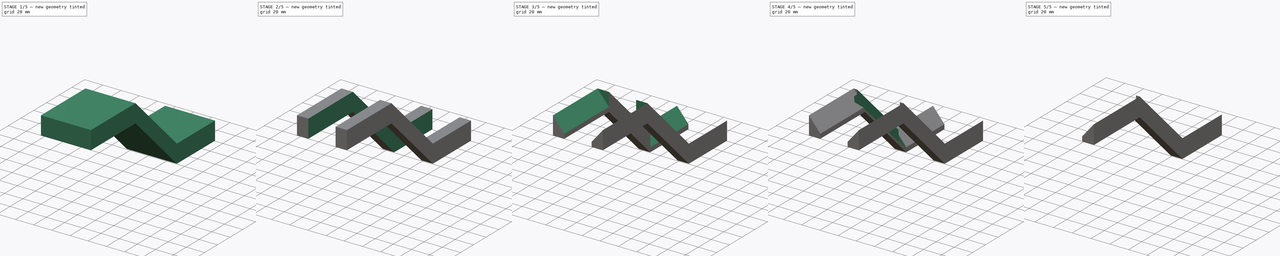
[diagram: build sequence overview — one tinted view per stage of 5, left to right]
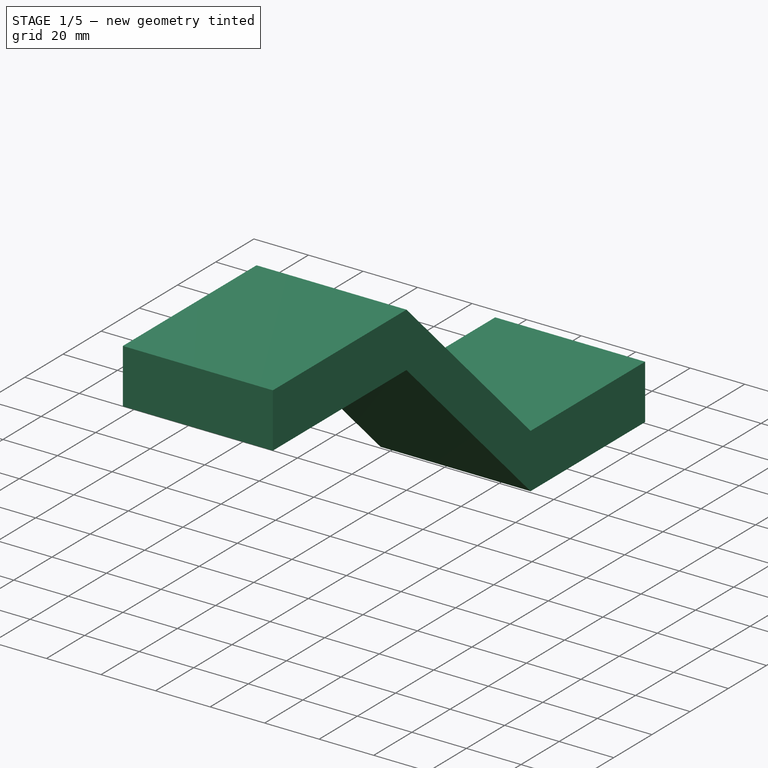
[diagram: stage 1 of 5 — iso view after this stage's code; geometry added in this stage tinted green]
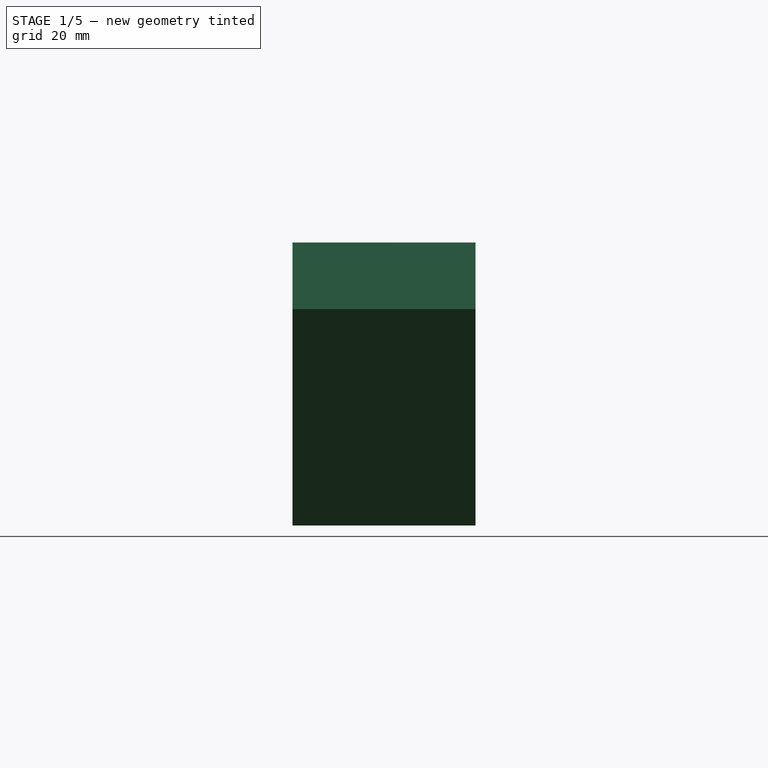
[diagram: stage 1 of 5 — front view after this stage's code; geometry added in this stage tinted green]
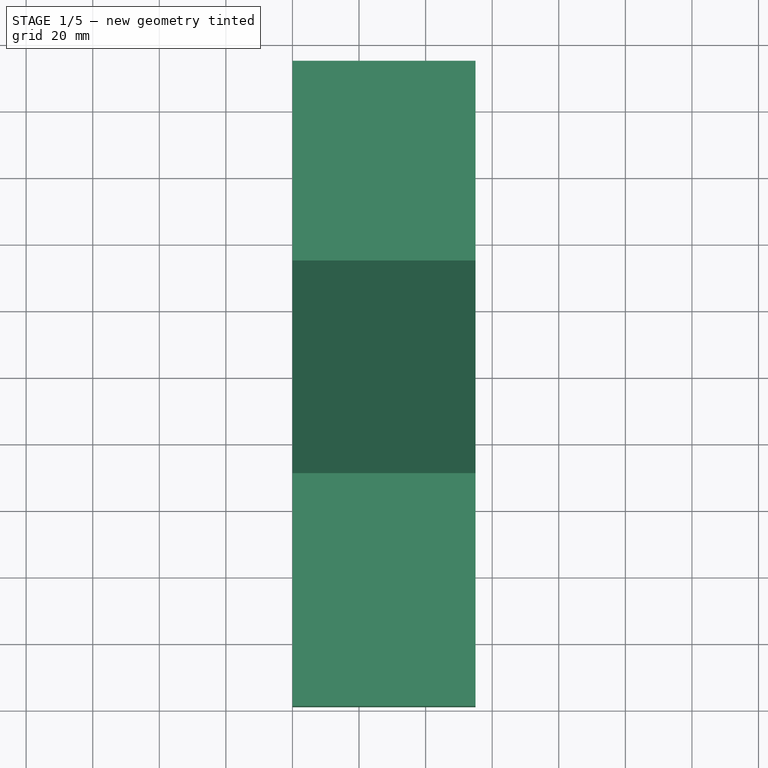
[diagram: stage 1 of 5 — top view after this stage's code; geometry added in this stage tinted green]
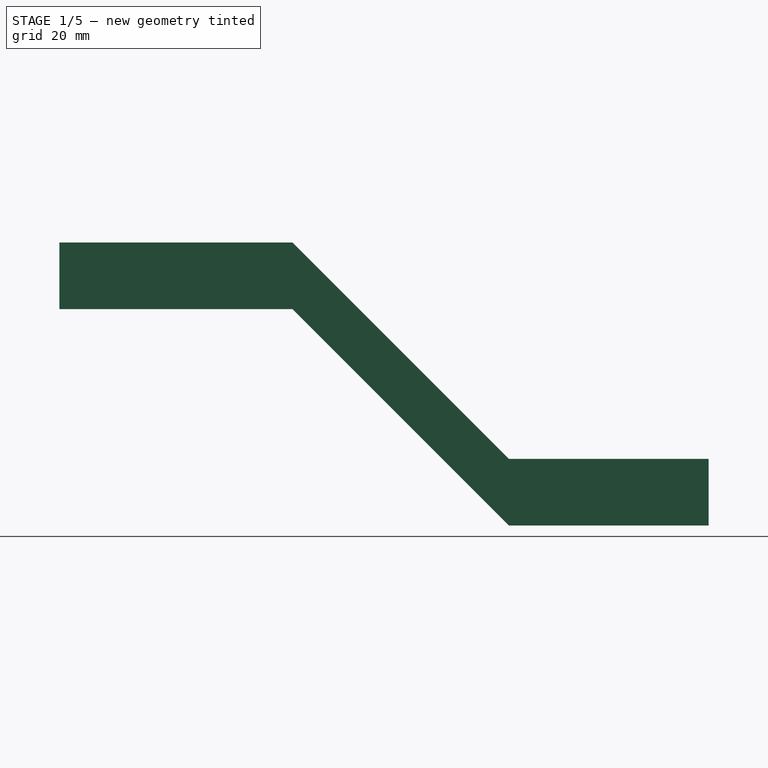
[diagram: stage 1 of 5 — right view after this stage's code; geometry added in this stage tinted green]
FCSTD DOCUMENT  (FreeCAD 0.18R4 (GitTag))
Label: Bras robot droit
License: All rights reserved
LicenseURL: http://en.wikipedia.org/wiki/All_rights_reserved
objects: Sketcher::SketchObject×18, PartDesign::Pocket×16, PartDesign::Hole×3, PartDesign::Pad×1, PartDesign::Body×1
note: 59 computed .brp shape members not serialized (recipe doc carries the construction recipe); baked Part::Feature solids carry a one-line shape summary decoded from their .brp

FEATURE [Sketcher::SketchObject] Sketch  label="Base du bras"
  MapMode = 5
  Placement = pos=(0,0,0) rot=(0.57735,0.57735,0.57735;2.0944rad)
  Support = -> [YZ_Plane]
  sketch-geometry (8):
    g0: LineSegment StartX=0 StartY=20 StartZ=0 EndX=70 EndY=20 EndZ=0
    g1: LineSegment StartX=70 StartY=0 StartZ=0 EndX=0 EndY=0 EndZ=0
    g2: LineSegment StartX=0 StartY=0 StartZ=0 EndX=0 EndY=20 EndZ=0
    g3: LineSegment StartX=70 StartY=20 StartZ=0 EndX=135 EndY=-45 EndZ=0
    g4: LineSegment StartX=70 StartY=0 StartZ=0 EndX=135 EndY=-65 EndZ=0
    g5: LineSegment StartX=135 StartY=-45 StartZ=0 EndX=195 EndY=-45 EndZ=0
    g6: LineSegment StartX=195 StartY=-45 StartZ=0 EndX=195 EndY=-65 EndZ=0
    g7: LineSegment StartX=195 StartY=-65 StartZ=0 EndX=135 EndY=-65 EndZ=0
  constraints (24):
    c: Coincident(g1,g2)
    c: Coincident(g2,g0)
    c: Horizontal(g0)
    c: Horizontal(g1)
    c: Vertical(g2)
    c: DistanceX(g0,g0) = 70
    c: DistanceY(g1,g0) = 20
    c: Parallel(g3,g4)
    c: DistanceX(g3,g3) = 65
    c: DistanceY(g3,g3) = 65
    c: DistanceY(g4,g4) = 65
    c: Coincident(g0,g3)
    c: Coincident(g5,g6)
    c: Coincident(g6,g7)
    c: Horizontal(g5)
    c: Horizontal(g7)
    c: Vertical(g6)
    c: DistanceY(g7,g5) = 20
    c: DistanceX(g5,g5) = 60
    c: Coincident(g3,g5)
    c: Coincident(g1,g-1)
    c: Coincident(g1,g4)
    c: DistanceX(g1,g1) = 70
    c: DistanceX(g7,g7) = 60
FEATURE [PartDesign::Pad] Pad  label="Base du bras001"
  Length = 55
  Length2 = 100
  Placement = pos=(0,0,0) rot=(0.57735,0.57735,0.57735;2.0944rad)
  Profile = -> Sketch
  Type = 0
FEATURE [Sketcher::SketchObject] Sketch001
  MapMode = 5
  Support = -> [XY_Plane]
  sketch-geometry (4):
    g0: LineSegment StartX=101.326 StartY=70.9871 StartZ=0 EndX=131.326 EndY=70.9871 EndZ=0
    g1: LineSegment StartX=131.326 StartY=70.9871 StartZ=0 EndX=131.326 EndY=0 EndZ=0
    g2: LineSegment StartX=131.326 StartY=0 StartZ=0 EndX=101.326 EndY=0 EndZ=0
    g3: LineSegment StartX=101.326 StartY=0 StartZ=0 EndX=101.326 EndY=70.9871 EndZ=0
  constraints (10):
    c: Coincident(g0,g1)
    c: Coincident(g1,g2)
    c: Coincident(g2,g3)
    c: Coincident(g3,g0)
    c: Horizontal(g0)
    c: Horizontal(g2)
    c: Vertical(g1)
    c: Vertical(g3)
    c: DistanceX(g2,g2) = 30
    c: PointOnObject(g2,g-1)
FEATURE [Sketcher::SketchObject] Sketch002
  MapMode = 5
  Placement = pos=(-5.6e-15,8.8e-15,20) rot=(0,0,-1;1.5708rad)
  Support = -> [Pad]
  sketch-geometry (4):
    g0: LineSegment StartX=-70 StartY=42.5 StartZ=0 EndX=0 EndY=42.5 EndZ=0
    g1: LineSegment StartX=0 StartY=42.5 StartZ=0 EndX=0 EndY=12.5 EndZ=0
    g2: LineSegment StartX=0 StartY=12.5 StartZ=0 EndX=-70 EndY=12.5 EndZ=0
    g3: LineSegment StartX=-70 StartY=12.5 StartZ=0 EndX=-70 EndY=42.5 EndZ=0
  constraints (12):
    c: Coincident(g0,g1)
    c: Coincident(g1,g2)
    c: Coincident(g2,g3)
    c: Coincident(g3,g0)
    c: Horizontal(g0)
    c: Horizontal(g2)
    c: Vertical(g1)
    c: Vertical(g3)
    c: DistanceY(g-1,g1) = 12.5
    c: DistanceX(g-1,g1) = 0
    c: DistanceX(g0,g0) = 70
    c: DistanceY(g1,g1) = 30
FEATURE [PartDesign::Hole] Hole
  BaseFeature = -> Pad
  Depth = 25
  DepthType = 1
  Diameter = 1.75
  DrillPoint = 1
  DrillPointAngle = 118
  HoleCutCountersinkAngle = 90
  HoleCutDepth = 0
  HoleCutDiameter = 1.6
  HoleCutType = 0
  ModelActualThread = false
  Placement = pos=(0,0,0) rot=(0.57735,0.57735,0.57735;2.0944rad)
  Profile = -> Pad [Face3]
  Tapered = false
  TaperedAngle = 90
  ThreadAngle = 0
  ThreadClass = 0
  ThreadCutOffInner = 0
  ThreadCutOffOuter = 0
  ThreadDirection = 0
  ThreadFit = 0
  ThreadPitch = 0
  ThreadSize = 0
  ThreadType = 1
  Threaded = false
FEATURE [PartDesign::Hole] Hole001
  BaseFeature = -> Hole
  Depth = 25
  DepthType = 1
  Diameter = 1.75
  DrillPoint = 1
  DrillPointAngle = 118
  HoleCutCountersinkAngle = 90
  HoleCutDepth = 0
  HoleCutDiameter = 1.6
  HoleCutType = 0
  ModelActualThread = false
  Placement = pos=(0,0,0) rot=(0.57735,0.57735,0.57735;2.0944rad)
  Profile = -> Hole [Face3]
  Tapered = false
  TaperedAngle = 90
  ThreadAngle = 0
  ThreadClass = 0
  ThreadCutOffInner = 0
  ThreadCutOffOuter = 0
  ThreadDirection = 0
  ThreadFit = 0
  ThreadPitch = 0
  ThreadSize = 0
  ThreadType = 1
  Threaded = false
FEATURE [PartDesign::Hole] Hole002
  BaseFeature = -> Hole001
  Depth = 25
  DepthType = 1
  Diameter = 6
  DrillPoint = 1
  DrillPointAngle = 118
  HoleCutCountersinkAngle = 90
  HoleCutDepth = 0
  HoleCutDiameter = 0
  HoleCutType = 0
  ModelActualThread = false
  Placement = pos=(0,0,0) rot=(0.57735,0.57735,0.57735;2.0944rad)
  Profile = -> Hole001 [Face3]
  Tapered = false
  TaperedAngle = 90
  ThreadAngle = 0
  ThreadClass = 0
  ThreadCutOffInner = 0
  ThreadCutOffOuter = 0
  ThreadDirection = 0
  ThreadFit = 0
  ThreadPitch = 0
  ThreadSize = 0
  ThreadType = 0
  Threaded = false
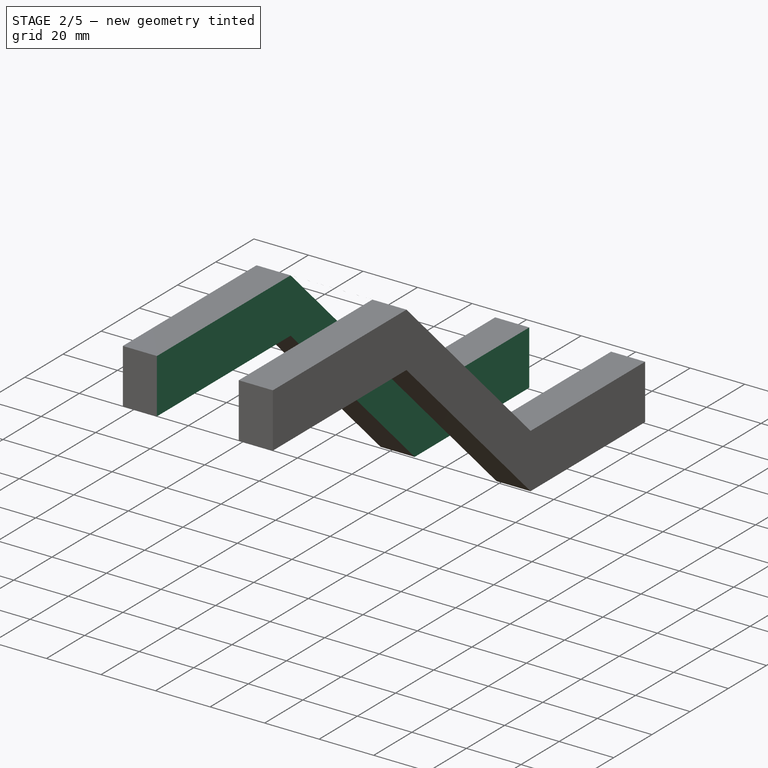
[diagram: stage 2 of 5 — iso view after this stage's code; geometry added in this stage tinted green]
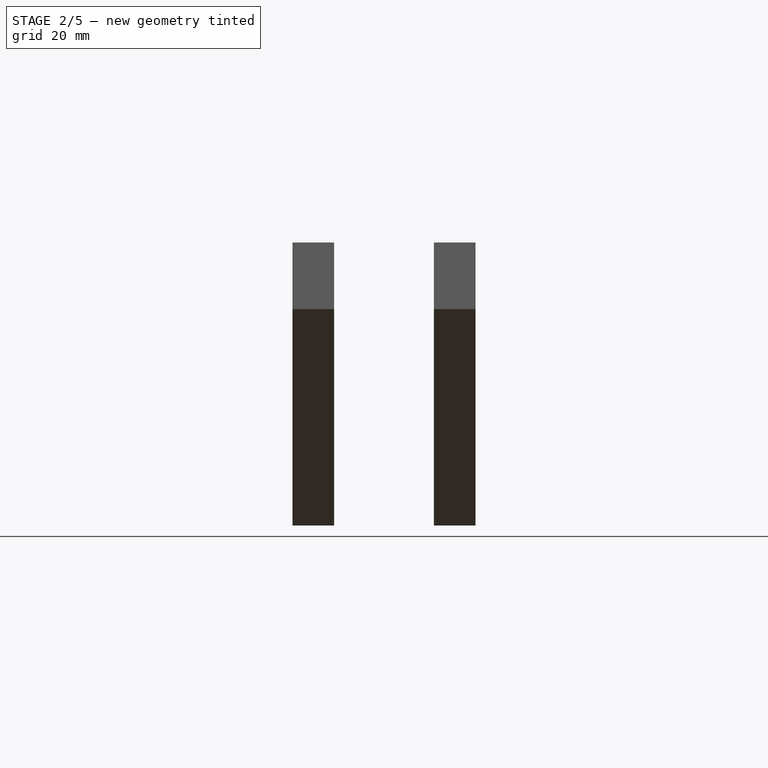
[diagram: stage 2 of 5 — front view after this stage's code; geometry added in this stage tinted green]
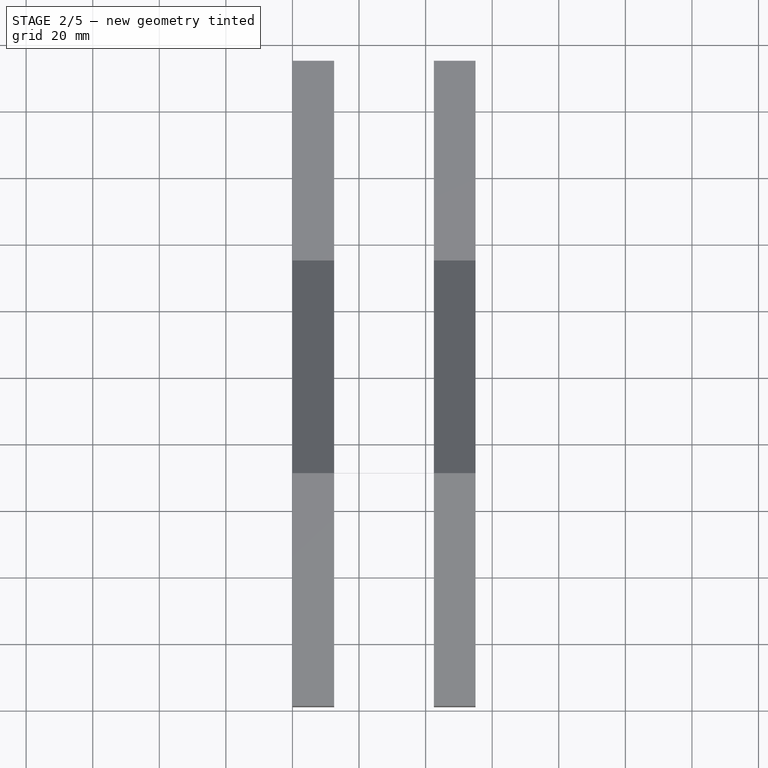
[diagram: stage 2 of 5 — top view after this stage's code; geometry added in this stage tinted green]
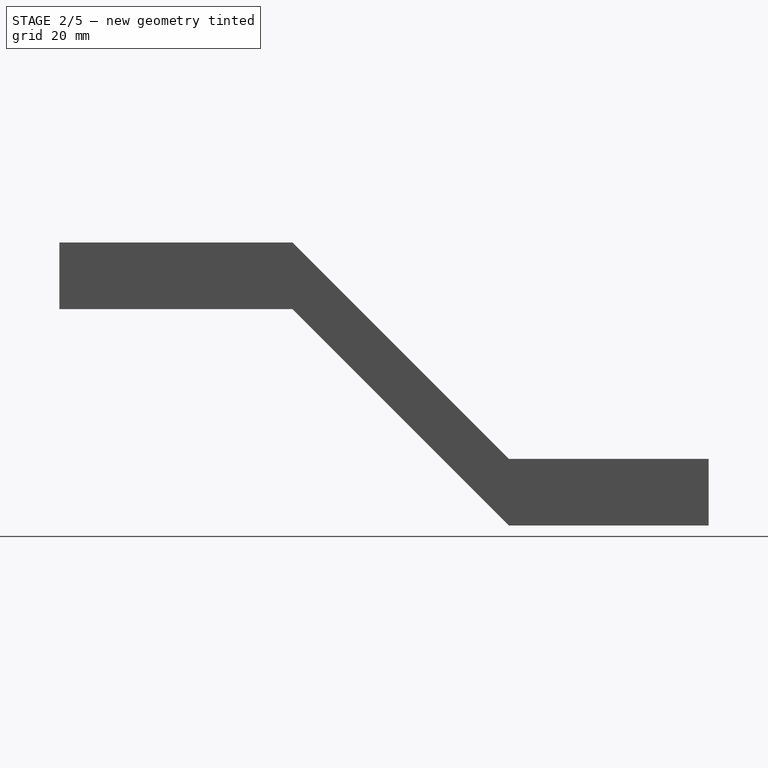
[diagram: stage 2 of 5 — right view after this stage's code; geometry added in this stage tinted green]
FEATURE [PartDesign::Pocket] Pocket
  BaseFeature = -> Hole002
  Length = 5
  Length2 = 100
  Placement = pos=(0,0,0) rot=(0.57735,0.57735,0.57735;2.0944rad)
  Profile = -> Sketch002
  Type = 1
FEATURE [Sketcher::SketchObject] Sketch003
  MapMode = 5
  Placement = pos=(7.6e-15,45,45) rot=(-0.357407,-0.357407,-0.862856;1.71777rad)
  Support = -> [Pocket]
  sketch-geometry (4):
    g0: LineSegment StartX=-127.283 StartY=42.5 StartZ=0 EndX=-35.36 EndY=42.5 EndZ=0
    g1: LineSegment StartX=-35.36 StartY=42.5 StartZ=0 EndX=-35.36 EndY=12.5 EndZ=0
    g2: LineSegment StartX=-35.36 StartY=12.5 StartZ=0 EndX=-127.283 EndY=12.5 EndZ=0
    g3: LineSegment StartX=-127.283 StartY=12.5 StartZ=0 EndX=-127.283 EndY=42.5 EndZ=0
  constraints (12):
    c: Coincident(g0,g1)
    c: Coincident(g1,g2)
    c: Coincident(g2,g3)
    c: Coincident(g3,g0)
    c: Horizontal(g0)
    c: Horizontal(g2)
    c: Vertical(g1)
    c: Vertical(g3)
    c: DistanceY(g1,g1) = 30
    c: DistanceX(g0,g0) = 91.923
    c: DistanceY(g-1,g1) = 12.5
    c: DistanceX(g1,g-1) = 35.36
FEATURE [PartDesign::Pocket] Pocket001
  BaseFeature = -> Pocket
  Length = 5
  Length2 = 100
  Placement = pos=(0,0,0) rot=(0.57735,0.57735,0.57735;2.0944rad)
  Profile = -> Sketch003
  Type = 1
FEATURE [Sketcher::SketchObject] Sketch004
  MapMode = 5
  Placement = pos=(1.26e-14,-1.98e-14,-45) rot=(0,0,-1;1.5708rad)
  Support = -> [Pocket001]
  sketch-geometry (4):
    g0: LineSegment StartX=-195 StartY=42.5 StartZ=0 EndX=-135 EndY=42.5 EndZ=0
    g1: LineSegment StartX=-135 StartY=42.5 StartZ=0 EndX=-135 EndY=12.5 EndZ=0
    g2: LineSegment StartX=-135 StartY=12.5 StartZ=0 EndX=-195 EndY=12.5 EndZ=0
    g3: LineSegment StartX=-195 StartY=12.5 StartZ=0 EndX=-195 EndY=42.5 EndZ=0
  constraints (12):
    c: Coincident(g0,g1)
    c: Coincident(g1,g2)
    c: Coincident(g2,g3)
    c: Coincident(g3,g0)
    c: Horizontal(g0)
    c: Horizontal(g2)
    c: Vertical(g1)
    c: Vertical(g3)
    c: DistanceY(g1,g1) = 30
    c: DistanceX(g2,g2) = 60
    c: DistanceX(g1,g-1) = 135
    c: DistanceY(g-1,g1) = 12.5
FEATURE [PartDesign::Pocket] Pocket002
  BaseFeature = -> Pocket001
  Length = 5
  Length2 = 100
  Placement = pos=(0,0,0) rot=(0.57735,0.57735,0.57735;2.0944rad)
  Profile = -> Sketch004
  Type = 1
FEATURE [PartDesign::Pocket] Pocket003
  BaseFeature = -> Pocket002
  Length = 5
  Length2 = 100
  Placement = pos=(0,0,0) rot=(0.57735,0.57735,0.57735;2.0944rad)
  Profile = -> Pocket002 [Face19]
  Type = 1
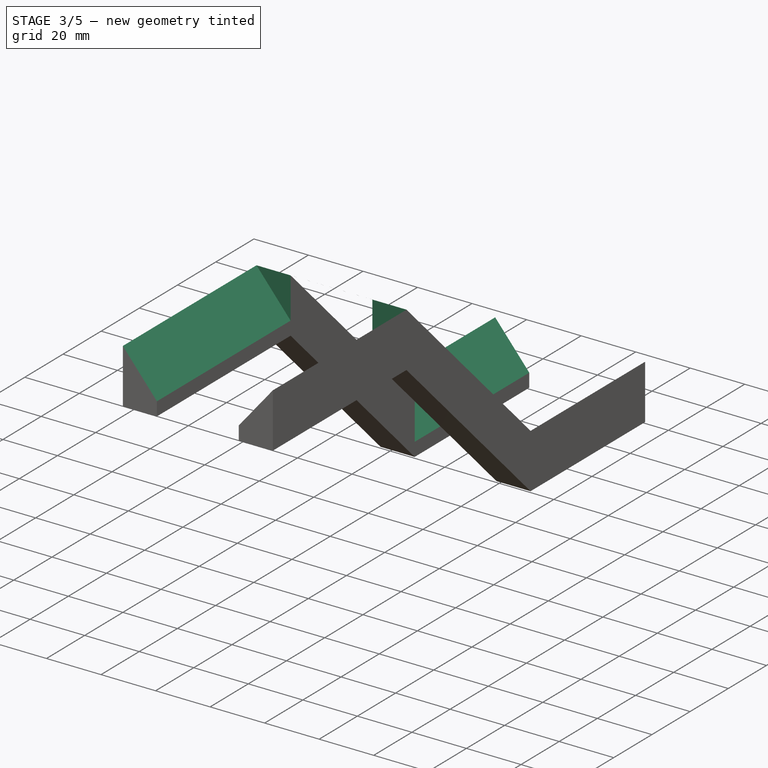
[diagram: stage 3 of 5 — iso view after this stage's code; geometry added in this stage tinted green]
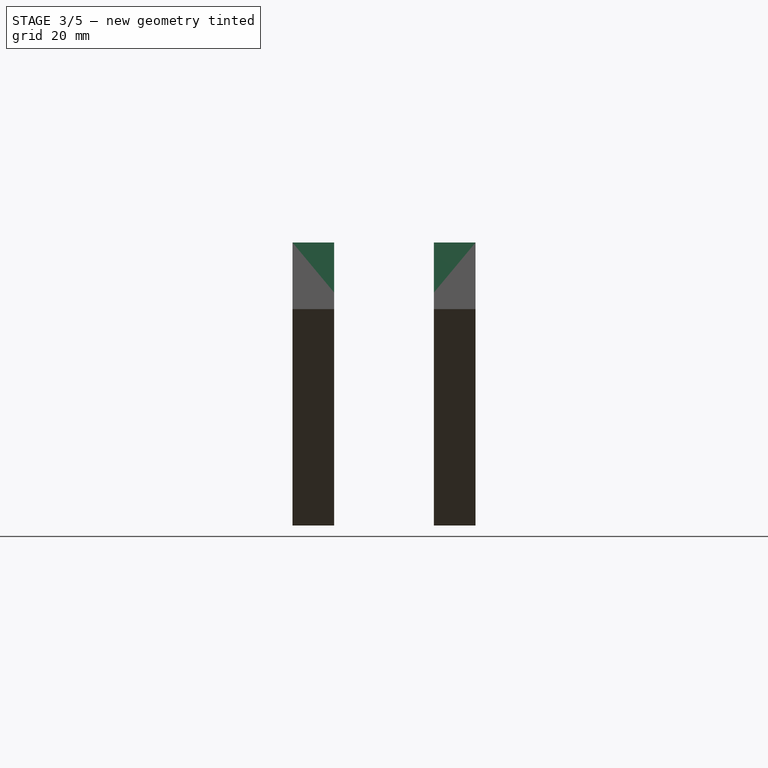
[diagram: stage 3 of 5 — front view after this stage's code; geometry added in this stage tinted green]
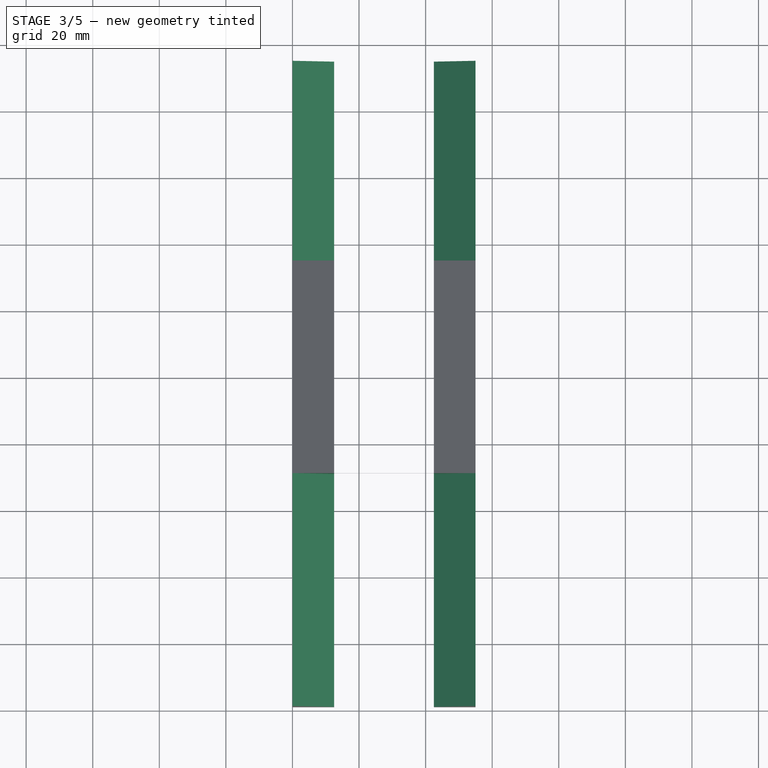
[diagram: stage 3 of 5 — top view after this stage's code; geometry added in this stage tinted green]
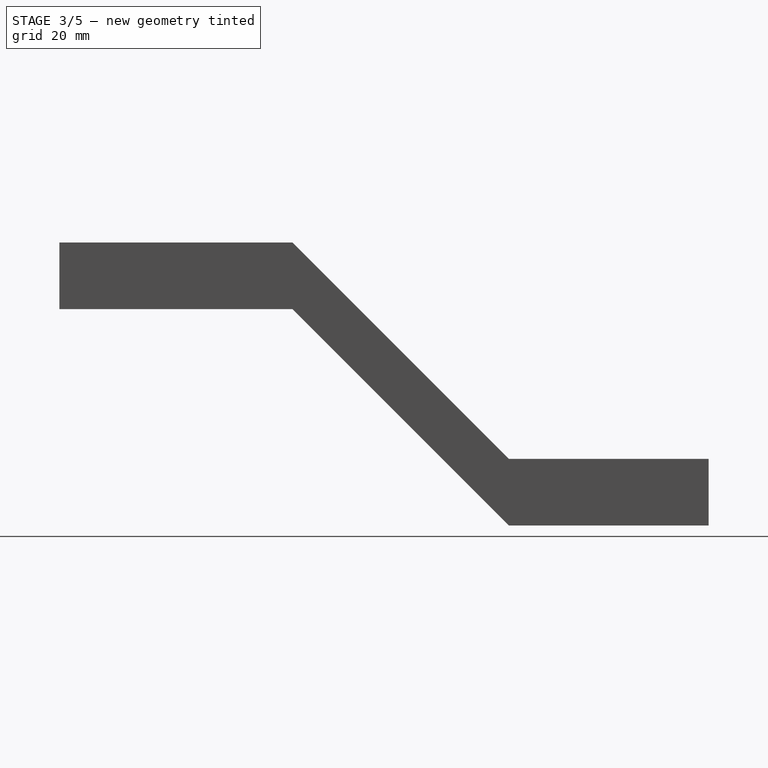
[diagram: stage 3 of 5 — right view after this stage's code; geometry added in this stage tinted green]
FEATURE [Sketcher::SketchObject] Sketch005
  MapMode = 5
  Placement = pos=(8.58e-14,195,-4.29e-14) rot=(0.57735,0.57735,0.57735;4.18879rad)
  Support = -> [Pocket003]
  sketch-geometry (3):
    g0: LineSegment StartX=-60 StartY=12.5 StartZ=0 EndX=-45 EndY=0 EndZ=0
    g1: LineSegment StartX=-60 StartY=12.5 StartZ=0 EndX=-45 EndY=12.5 EndZ=0
    g2: LineSegment StartX=-45 StartY=12.5 StartZ=0 EndX=-45 EndY=0 EndZ=0
  constraints (9):
    c: DistanceY(g-1,g0) = 0
    c: DistanceX(g0,g-1) = 45
    c: Vertical(g2)
    c: DistanceY(g2,g2) = 12.5
    c: Coincident(g2,g0)
    c: Coincident(g1,g2)
    c: Coincident(g0,g1)
    c: Horizontal(g1)
    c: DistanceX(g1,g1) = 15
FEATURE [PartDesign::Pocket] Pocket004
  BaseFeature = -> Pocket003
  Length = 60
  Length2 = 100
  Placement = pos=(0,0,0) rot=(0.57735,0.57735,0.57735;2.0944rad)
  Profile = -> Sketch005
  Type = 0
FEATURE [Sketcher::SketchObject] Sketch006
  MapMode = 5
  Placement = pos=(8.58e-14,195,-4.29e-14) rot=(0.57735,0.57735,0.57735;4.18879rad)
  Support = -> [Pocket004]
  sketch-geometry (3):
    g0: LineSegment StartX=-45 StartY=55 StartZ=0 EndX=-45 EndY=42.5 EndZ=0
    g1: LineSegment StartX=-45 StartY=42.5 StartZ=0 EndX=-60 EndY=42.5 EndZ=0
    g2: LineSegment StartX=-45 StartY=55 StartZ=0 EndX=-60 EndY=42.5 EndZ=0
  constraints (9):
    c: Coincident(g0,g2)
    c: Coincident(g2,g1)
    c: Coincident(g0,g1)
    c: Vertical(g0)
    c: DistanceY(g0,g0) = 12.5
    c: DistanceY(g-1,g0) = 42.5
    c: DistanceX(g0,g-1) = 45
    c: Horizontal(g1)
    c: DistanceX(g1,g1) = 15
FEATURE [PartDesign::Pocket] Pocket005
  BaseFeature = -> Pocket004
  Length = 60
  Length2 = 100
  Placement = pos=(0,0,0) rot=(0.57735,0.57735,0.57735;2.0944rad)
  Profile = -> Sketch006
  Type = 0
FEATURE [Sketcher::SketchObject] Sketch009
  MapMode = 5
  Placement = pos=(0,0,0) rot=(-0.57735,-0.57735,0.57735;4.18879rad)
  Support = -> [Pocket005]
FEATURE [Sketcher::SketchObject] Sketch011
  MapMode = 5
  Placement = pos=(0,0,0) rot=(-0.57735,-0.57735,0.57735;4.18879rad)
  Support = -> [Pocket005]
  sketch-geometry (3):
    g0: LineSegment StartX=-20 StartY=12.5 StartZ=0 EndX=-20 EndY=0 EndZ=0
    g1: LineSegment StartX=-5 StartY=12.5 StartZ=0 EndX=-20 EndY=0 EndZ=0
    g2: LineSegment StartX=-20 StartY=12.5 StartZ=0 EndX=-5 EndY=12.5 EndZ=0
  constraints (9):
    c: Coincident(g0,g2)
    c: Coincident(g2,g1)
    c: Coincident(g0,g1)
    c: Vertical(g0)
    c: DistanceY(g0,g0) = 12.5
    c: Horizontal(g2)
    c: DistanceX(g2,g2) = 15
    c: DistanceX(g0,g-1) = 20
    c: DistanceY(g-1,g0) = 12.5
FEATURE [PartDesign::Pocket] Pocket006
  BaseFeature = -> Pocket005
  Length = 70
  Length2 = 100
  Placement = pos=(0,0,0) rot=(0.57735,0.57735,0.57735;2.0944rad)
  Profile = -> Sketch011
  Type = 0
FEATURE [Sketcher::SketchObject] Sketch012
  MapMode = 5
  Placement = pos=(0,0,0) rot=(-0.57735,-0.57735,0.57735;4.18879rad)
  Support = -> [Pocket006]
  sketch-geometry (3):
    g0: LineSegment StartX=-20 StartY=55 StartZ=0 EndX=-20 EndY=42.5 EndZ=0
    g1: LineSegment StartX=-20 StartY=42.5 StartZ=0 EndX=-5 EndY=42.5 EndZ=0
    g2: LineSegment StartX=-20 StartY=55 StartZ=0 EndX=-5 EndY=42.5 EndZ=0
  constraints (9):
    c: Coincident(g0,g2)
    c: Coincident(g2,g1)
    c: Coincident(g0,g1)
    c: Vertical(g0)
    c: DistanceY(g0,g0) = 12.5
    c: DistanceX(g1,g1) = 15
    c: Horizontal(g1)
    c: DistanceY(g-1,g0) = 42.5
    c: DistanceX(g0,g-1) = 20
FEATURE [PartDesign::Pocket] Pocket007
  BaseFeature = -> Pocket006
  Length = 70
  Length2 = 100
  Placement = pos=(0,0,0) rot=(0.57735,0.57735,0.57735;2.0944rad)
  Profile = -> Sketch012
  Type = 0
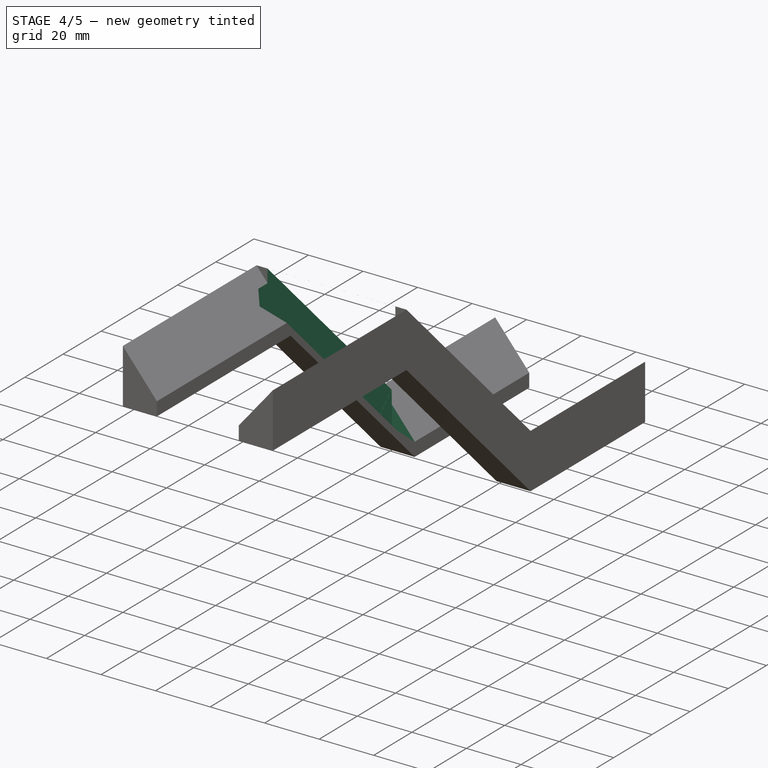
[diagram: stage 4 of 5 — iso view after this stage's code; geometry added in this stage tinted green]
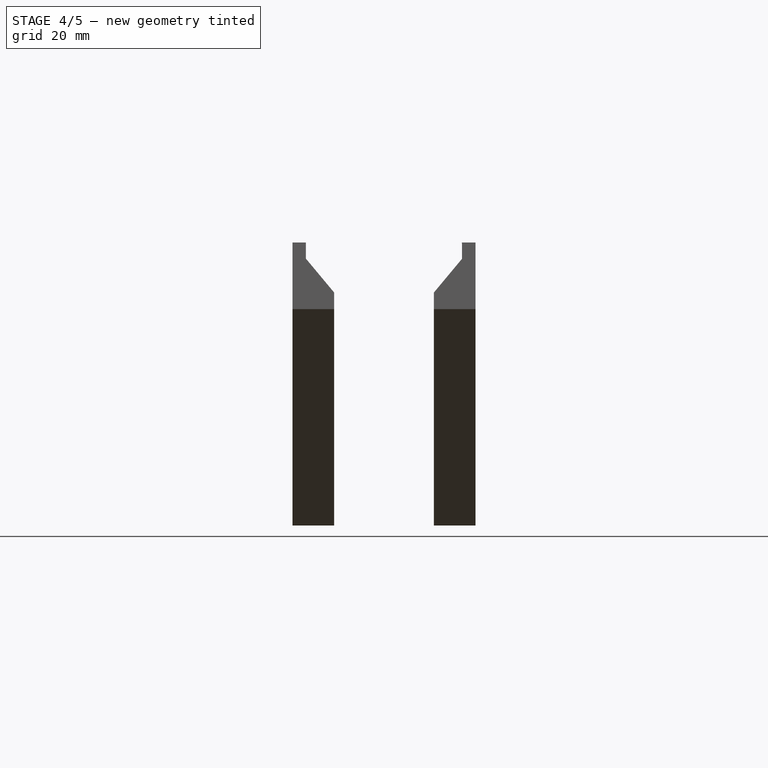
[diagram: stage 4 of 5 — front view after this stage's code; geometry added in this stage tinted green]
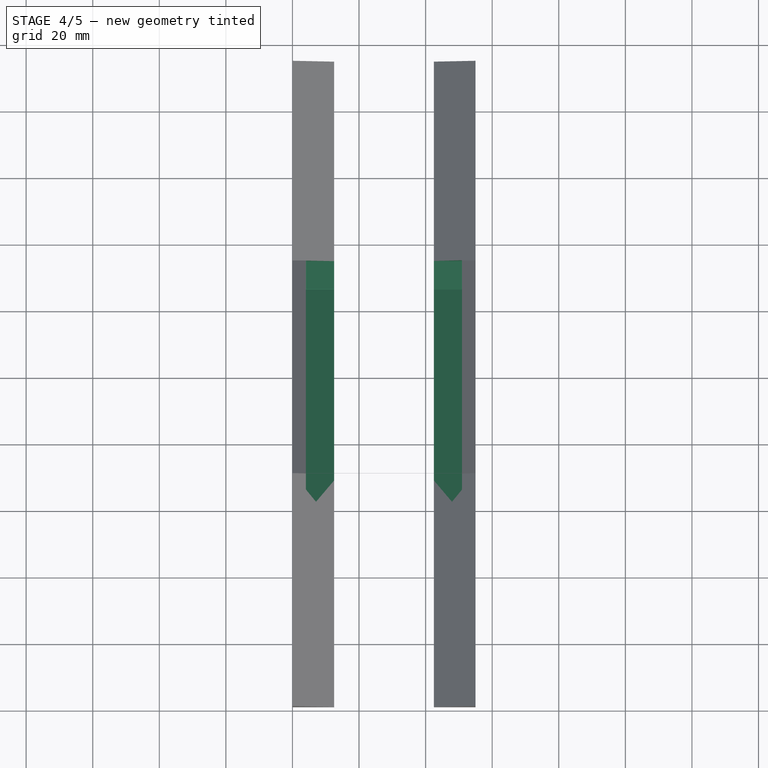
[diagram: stage 4 of 5 — top view after this stage's code; geometry added in this stage tinted green]
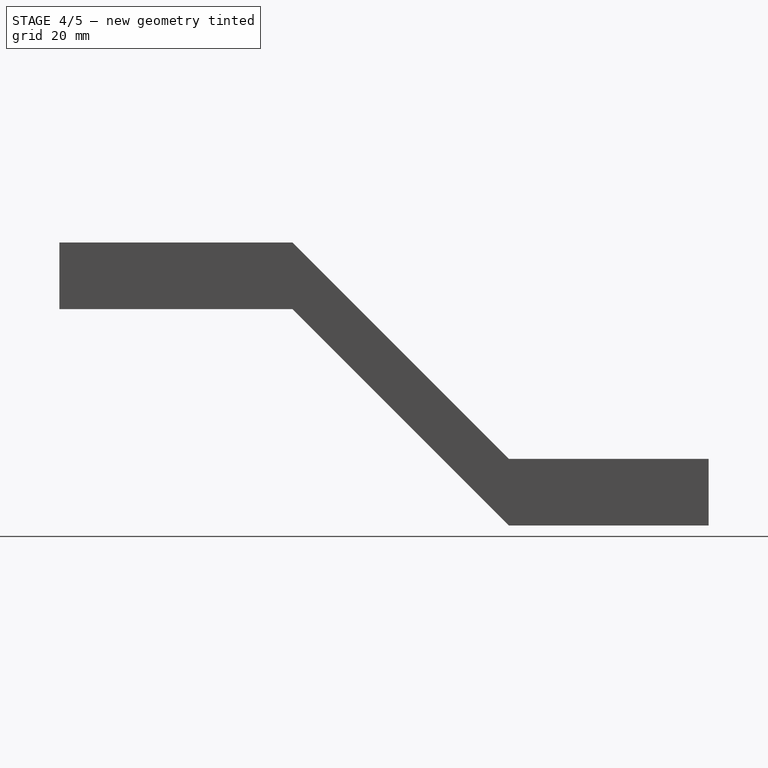
[diagram: stage 4 of 5 — right view after this stage's code; geometry added in this stage tinted green]
FEATURE [Sketcher::SketchObject] Sketch016
  MapMode = 5
  Placement = pos=(7.6e-15,45,45) rot=(-0.357407,-0.357407,-0.862856;1.71777rad)
  Support = -> [Pocket007]
  sketch-geometry (8):
    g0: LineSegment StartX=-127.25 StartY=54.8521 StartZ=0 EndX=-35.35 EndY=54.8521 EndZ=0
    g1: LineSegment StartX=-35.35 StartY=54.8521 StartZ=0 EndX=-35.35 EndY=42.3521 EndZ=0
    g2: LineSegment StartX=-35.35 StartY=42.3521 StartZ=0 EndX=-127.25 EndY=42.3521 EndZ=0
    g3: LineSegment StartX=-127.25 StartY=42.3521 StartZ=0 EndX=-127.25 EndY=54.8521 EndZ=0
    g4: LineSegment StartX=-127.25 StartY=12.7376 StartZ=0 EndX=-35.35 EndY=12.7376 EndZ=0
    g5: LineSegment StartX=-35.35 StartY=12.7376 StartZ=0 EndX=-35.35 EndY=0.237602 EndZ=0
    g6: LineSegment StartX=-35.35 StartY=0.237602 StartZ=0 EndX=-127.25 EndY=0.237602 EndZ=0
    g7: LineSegment StartX=-127.25 StartY=0.237602 StartZ=0 EndX=-127.25 EndY=12.7376 EndZ=0
  constraints (22):
    c: Coincident(g0,g1)
    c: Coincident(g1,g2)
    c: Coincident(g2,g3)
    c: Coincident(g3,g0)
    c: Horizontal(g0)
    c: Horizontal(g2)
    c: Vertical(g1)
    c: Vertical(g3)
    c: Coincident(g4,g5)
    c: Coincident(g5,g6)
    c: Coincident(g6,g7)
    c: Coincident(g7,g4)
    c: Horizontal(g4)
    c: Horizontal(g6)
    c: Vertical(g5)
    c: Vertical(g7)
    c: DistanceX(g0,g0) = 91.9
    c: DistanceY(g1,g1) = 12.5
    c: DistanceX(g4,g4) = 91.9
    c: DistanceY(g7,g7) = 12.5
    c: DistanceX(g1,g-1) = 35.35
    c: DistanceX(g5,g-1) = 35.35
FEATURE [Sketcher::SketchObject] Sketch019
  MapMode = 5
  Placement = pos=(7.6e-15,45,45) rot=(-0.357407,-0.357407,-0.862856;1.71777rad)
  Support = -> [Pocket007]
  sketch-geometry (4):
    g0: LineSegment StartX=-127.266 StartY=50.9216 StartZ=0 EndX=-35.5888 EndY=50.9216 EndZ=0
    g1: LineSegment StartX=-35.5888 StartY=50.9216 StartZ=0 EndX=-35.5888 EndY=42.4925 EndZ=0
    g2: LineSegment StartX=-35.5888 StartY=42.4925 StartZ=0 EndX=-127.266 EndY=42.4925 EndZ=0
    g3: LineSegment StartX=-127.266 StartY=42.4925 StartZ=0 EndX=-127.266 EndY=50.9216 EndZ=0
  constraints (8):
    c: Coincident(g0,g1)
    c: Coincident(g1,g2)
    c: Coincident(g2,g3)
    c: Coincident(g3,g0)
    c: Horizontal(g0)
    c: Horizontal(g2)
    c: Vertical(g1)
    c: Vertical(g3)
FEATURE [PartDesign::Pocket] Pocket008
  BaseFeature = -> Pocket007
  Length = 12
  Length2 = 100
  Placement = pos=(0,0,0) rot=(0.57735,0.57735,0.57735;2.0944rad)
  Profile = -> Sketch019
  Type = 0
FEATURE [Sketcher::SketchObject] Sketch020
  MapMode = 5
  Placement = pos=(7.6e-15,45,45) rot=(-0.357407,-0.357407,-0.862856;1.71777rad)
  Support = -> [Pocket008]
  sketch-geometry (8):
    g0: LineSegment StartX=-127.151 StartY=42.1777 StartZ=0 EndX=-35.363 EndY=42.1777 EndZ=0
    g1: LineSegment StartX=-35.363 StartY=42.1777 StartZ=0 EndX=-35.363 EndY=50.8917 EndZ=0
    g2: LineSegment StartX=-35.363 StartY=50.8917 StartZ=0 EndX=-127.151 EndY=50.8917 EndZ=0
    g3: LineSegment StartX=-127.151 StartY=50.8917 StartZ=0 EndX=-127.151 EndY=42.1777 EndZ=0
    g4: LineSegment StartX=-127.151 StartY=12.7584 StartZ=0 EndX=-35.3631 EndY=12.7584 EndZ=0
    g5: LineSegment StartX=-35.3631 StartY=12.7584 StartZ=0 EndX=-35.3631 EndY=4.04844 EndZ=0
    g6: LineSegment StartX=-35.3631 StartY=4.04844 StartZ=0 EndX=-127.151 EndY=4.04844 EndZ=0
    g7: LineSegment StartX=-127.151 StartY=4.04844 StartZ=0 EndX=-127.151 EndY=12.7584 EndZ=0
  constraints (17):
    c: Coincident(g0,g1)
    c: Coincident(g1,g2)
    c: Coincident(g2,g3)
    c: Coincident(g3,g0)
    c: Horizontal(g0)
    c: Horizontal(g2)
    c: Vertical(g1)
    c: Vertical(g3)
    c: Coincident(g4,g5)
    c: Coincident(g5,g6)
    c: Coincident(g6,g7)
    c: Coincident(g7,g4)
    c: Horizontal(g4)
    c: Horizontal(g6)
    c: Vertical(g5)
    c: Vertical(g7)
    c: DistanceY(g7,g7) = 8.71
FEATURE [PartDesign::Pocket] Pocket009
  BaseFeature = -> Pocket008
  Length = 12
  Length2 = 100
  Placement = pos=(0,0,0) rot=(0.57735,0.57735,0.57735;2.0944rad)
  Profile = -> Sketch020
  Type = 0
FEATURE [Sketcher::SketchObject] Sketch021
  MapMode = 5
  Placement = pos=(12.5,-8e-15,2e-15) rot=(0.57735,0.57735,0.57735;2.0944rad)
  Support = -> [Pocket009]
  sketch-geometry (3):
    g0: LineSegment StartX=135.05 StartY=-44.5105 StartZ=0 EndX=126.491 EndY=-53.3032 EndZ=0
    g1: LineSegment StartX=135.062 StartY=-60.0989 StartZ=0 EndX=126.491 EndY=-53.3032 EndZ=0
    g2: LineSegment StartX=135.05 StartY=-44.5105 StartZ=0 EndX=135.062 EndY=-60.0989 EndZ=0
  constraints (3):
    c: Coincident(g2,g0)
    c: Coincident(g1,g2)
    c: Coincident(g0,g1)
FEATURE [PartDesign::Pocket] Pocket010
  BaseFeature = -> Pocket009
  Length = 8.4
  Length2 = 100
  Placement = pos=(0,0,0) rot=(0.57735,0.57735,0.57735;2.0944rad)
  Profile = -> Sketch021
  Type = 0
FEATURE [Sketcher::SketchObject] Sketch022
  MapMode = 5
  Placement = pos=(42.5,-2.72e-14,6.8e-15) rot=(-0.57735,-0.57735,0.57735;2.0944rad)
  Support = -> [Pocket010]
  sketch-geometry (3):
    g0: LineSegment StartX=135.124 StartY=60.0921 StartZ=0 EndX=126.3 EndY=53.4792 EndZ=0
    g1: LineSegment StartX=126.3 StartY=53.4792 StartZ=0 EndX=135.184 EndY=44.648 EndZ=0
    g2: LineSegment StartX=135.184 StartY=44.648 StartZ=0 EndX=135.124 EndY=60.0921 EndZ=0
  constraints (3):
    c: Coincident(g2,g0)
    c: Coincident(g2,g1)
    c: Coincident(g1,g0)
FEATURE [PartDesign::Pocket] Pocket011
  BaseFeature = -> Pocket010
  Length = 8.4
  Length2 = 100
  Placement = pos=(0,0,0) rot=(0.57735,0.57735,0.57735;2.0944rad)
  Profile = -> Sketch022
  Type = 0
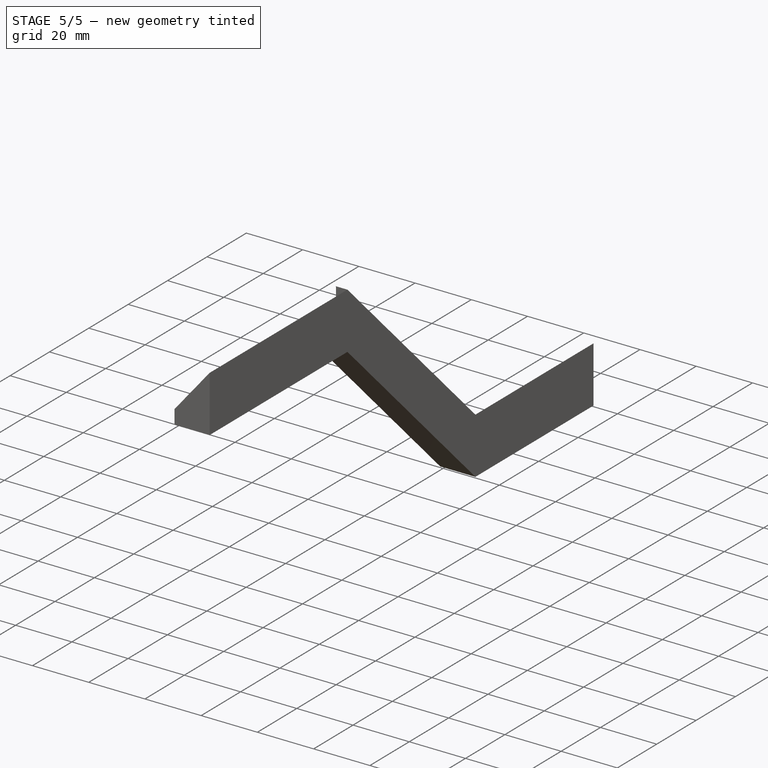
[diagram: stage 5 of 5 — iso view after this stage's code; geometry added in this stage tinted green]
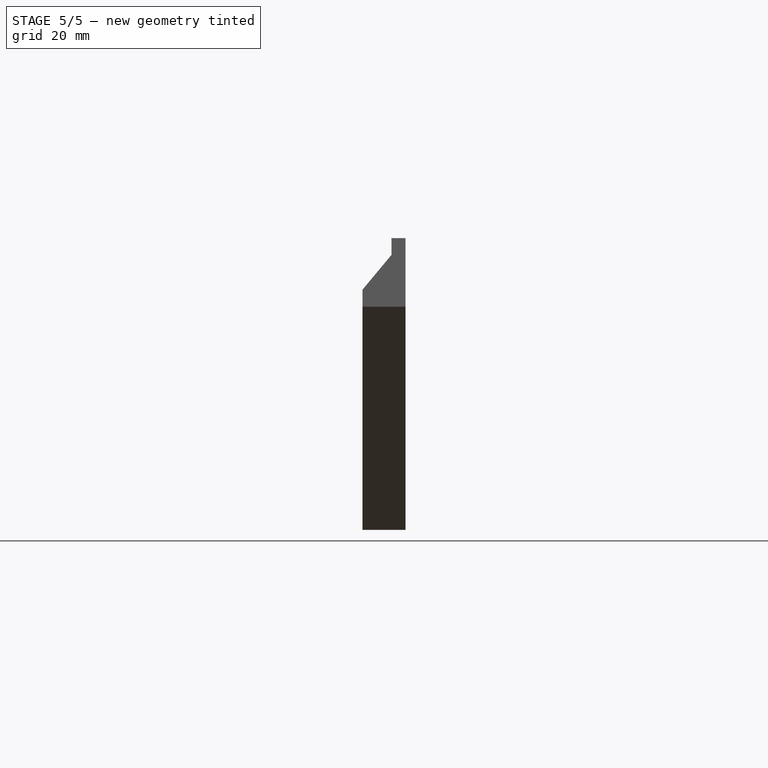
[diagram: stage 5 of 5 — front view after this stage's code; geometry added in this stage tinted green]
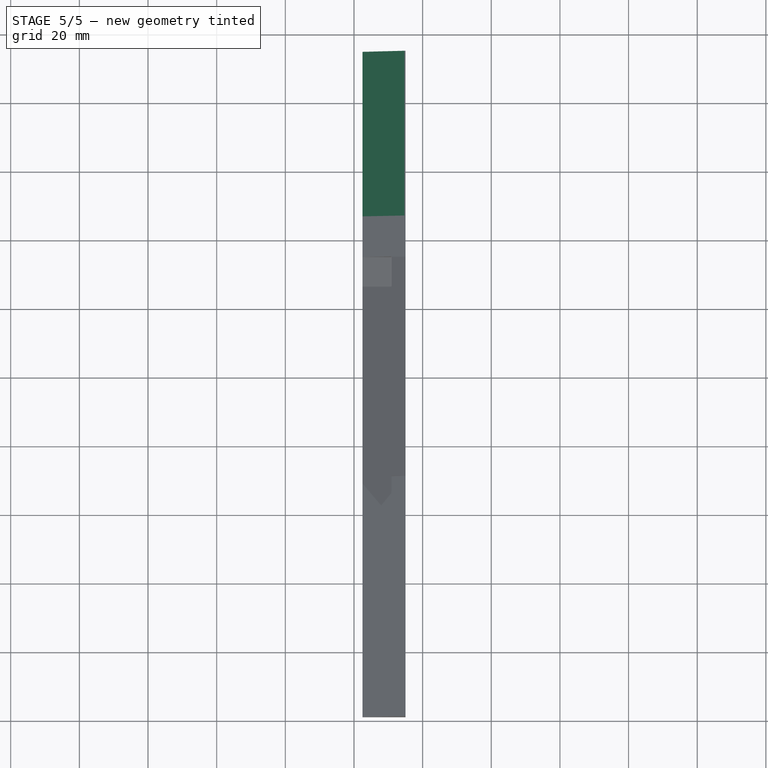
[diagram: stage 5 of 5 — top view after this stage's code; geometry added in this stage tinted green]
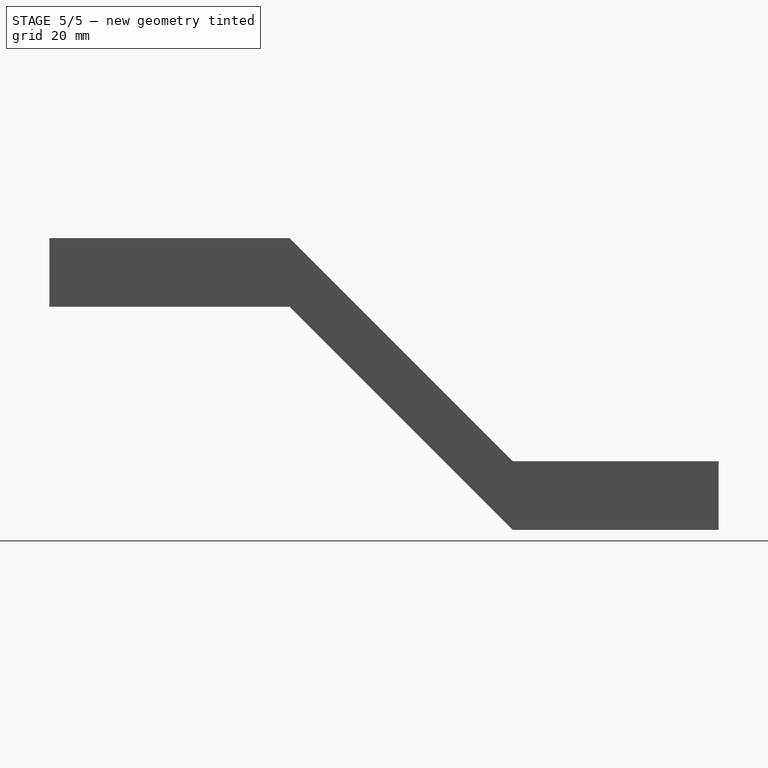
[diagram: stage 5 of 5 — right view after this stage's code; geometry added in this stage tinted green]
FEATURE [Sketcher::SketchObject] Sketch025
  MapMode = 5
  Placement = pos=(8.6e-14,195,-4.3e-14) rot=(0.57735,0.57735,0.57735;4.18879rad)
  sketch-geometry (3):
    g0: LineSegment StartX=-63.7801 StartY=42.449 StartZ=0 EndX=-44.9923 EndY=54.9386 EndZ=0
    g1: LineSegment StartX=-60.0439 StartY=42.449 StartZ=0 EndX=-44.9923 EndY=54.9386 EndZ=0
    g2: LineSegment StartX=-60.0439 StartY=42.449 StartZ=0 EndX=-63.7801 EndY=42.449 EndZ=0
  constraints (3):
    c: Coincident(g2,g0)
    c: Coincident(g0,g1)
    c: Coincident(g1,g2)
FEATURE [PartDesign::Pocket] Pocket012
  BaseFeature = -> Pocket011
  Length = 48
  Length2 = 100
  Placement = pos=(0,0,0) rot=(0.57735,0.57735,0.57735;2.0944rad)
  Profile = -> Sketch025
  Type = 0
FEATURE [Sketcher::SketchObject] Sketch026
  MapMode = 5
  Placement = pos=(8.58e-14,195,-4.29e-14) rot=(0.57735,0.57735,0.57735;4.18879rad)
  Support = -> [Pocket012]
  sketch-geometry (3):
    g0: LineSegment StartX=-63.7124 StartY=12.5288 StartZ=0 EndX=-45.1072 EndY=0.095153 EndZ=0
    g1: LineSegment StartX=-63.7124 StartY=12.5288 StartZ=0 EndX=-59.9724 EndY=12.5288 EndZ=0
    g2: LineSegment StartX=-59.9724 StartY=12.5288 StartZ=0 EndX=-45.1072 EndY=0.095153 EndZ=0
  constraints (4):
    c: Coincident(g0,g2)
    c: Coincident(g0,g1)
    c: Coincident(g1,g2)
    c: DistanceX(g1,g1) = 3.74
FEATURE [PartDesign::Pocket] Pocket013
  BaseFeature = -> Pocket012
  Length = 48
  Length2 = 100
  Placement = pos=(0,0,0) rot=(0.57735,0.57735,0.57735;2.0944rad)
  Profile = -> Sketch026
  Type = 0
FEATURE [Sketcher::SketchObject] Sketch027
  MapMode = 5
  Placement = pos=(1.82e-14,-2.86e-14,-65) rot=(0.707107,0.707107,0;3.14159rad)
  Support = -> [Pocket013]
  sketch-geometry (4):
    g0: LineSegment StartX=-11.1711 StartY=42.5 StartZ=0 EndX=216.6 EndY=42.5 EndZ=0
    g1: LineSegment StartX=216.6 StartY=42.5 StartZ=0 EndX=216.6 EndY=-9.44873 EndZ=0
    g2: LineSegment StartX=216.6 StartY=-9.44873 StartZ=0 EndX=-11.1711 EndY=-9.44873 EndZ=0
    g3: LineSegment StartX=-11.1711 StartY=-9.44873 StartZ=0 EndX=-11.1711 EndY=42.5 EndZ=0
  constraints (8):
    c: Coincident(g0,g1)
    c: Coincident(g1,g2)
    c: Coincident(g2,g3)
    c: Coincident(g3,g0)
    c: Horizontal(g0)
    c: Horizontal(g2)
    c: Vertical(g1)
    c: Vertical(g3)
FEATURE [PartDesign::Pocket] Pocket014
  BaseFeature = -> Pocket013
  Length = 400
  Length2 = 100
  Placement = pos=(0,0,0) rot=(0.57735,0.57735,0.57735;2.0944rad)
  Profile = -> Sketch027
  Type = 0
FEATURE [PartDesign::Pocket] Pocket015
  BaseFeature = -> Pocket014
  Length = 1
  Length2 = 100
  Placement = pos=(0,0,0) rot=(0.57735,0.57735,0.57735;2.0944rad)
  Profile = -> Pocket014 [Face4]
  Type = 0
FEATURE [PartDesign::Body] Body
  Group = -> [Sketch,Pad,Sketch001,Sketch002,Hole,Hole001,Hole002,Pocket,Sketch003,Pocket001,Sketch004,Pocket002,Pocket003,Sketch005,Pocket004,Sketch006,Pocket005,Sketch009,Sketch011,Pocket006,Sketch012,Pocket007,Sketch016,Sketch019,Pocket008,Sketch020,Pocket009,Sketch021,Pocket010,Sketch022,Pocket011,Sketch025,Pocket012,Sketch026,Pocket013,Sketch027,Pocket014,Pocket015]
  Origin = -> Origin
  Tip = -> Pocket015
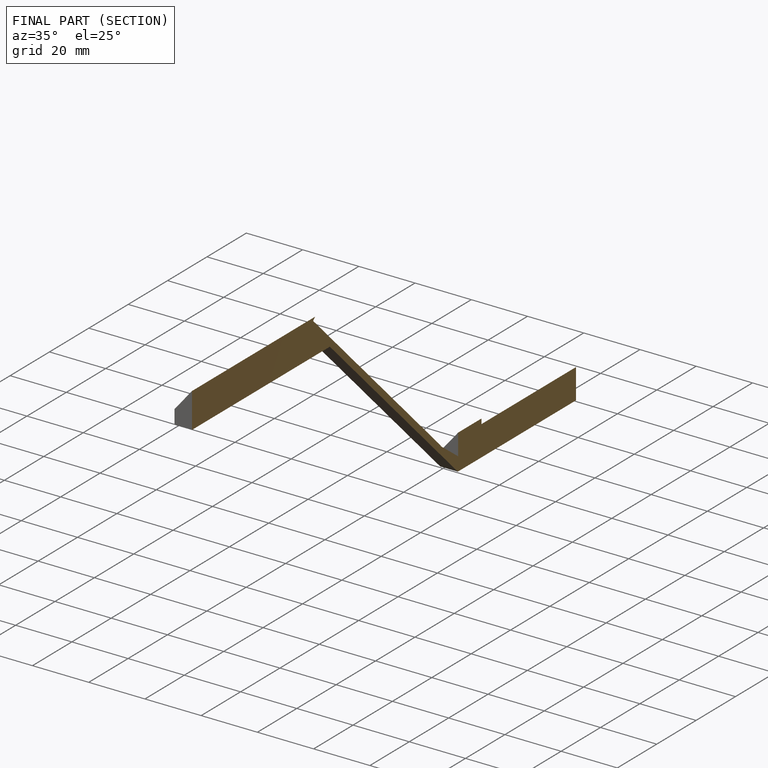
[diagram: finished part — half-section view (interior)]
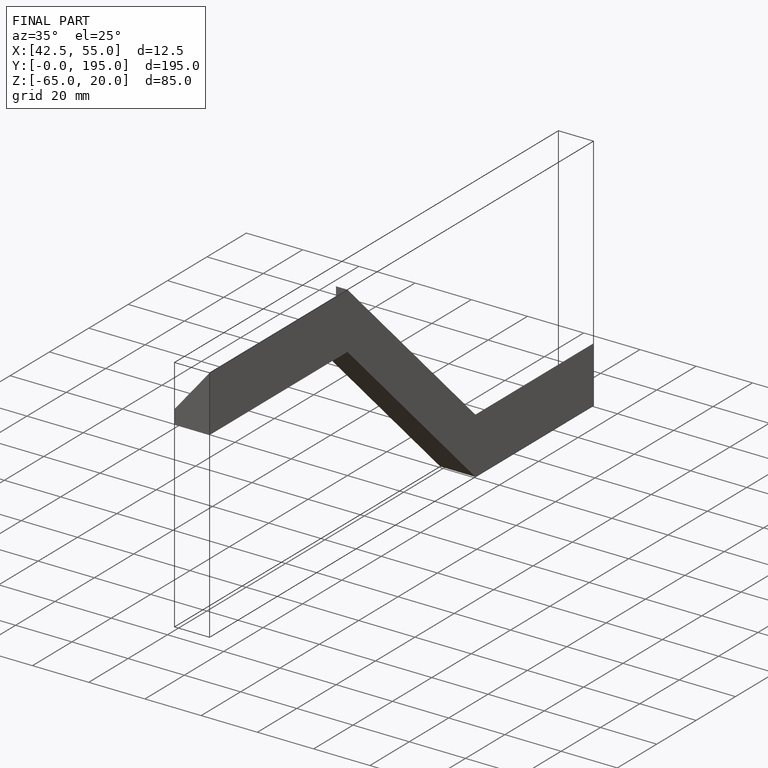
[diagram: finished part — iso view with bounding-box wireframe]
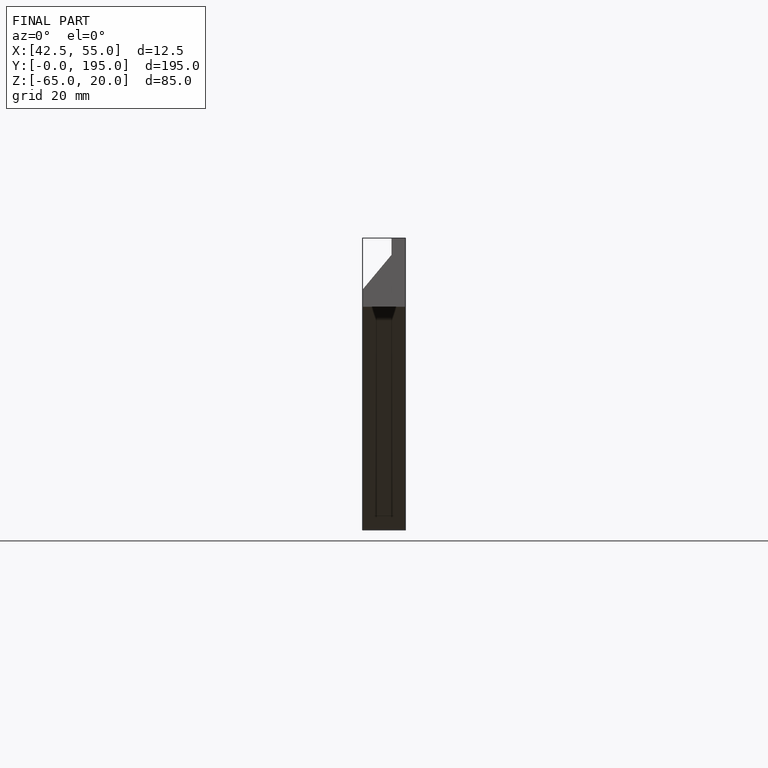
[diagram: finished part — front view with bounding-box wireframe]
